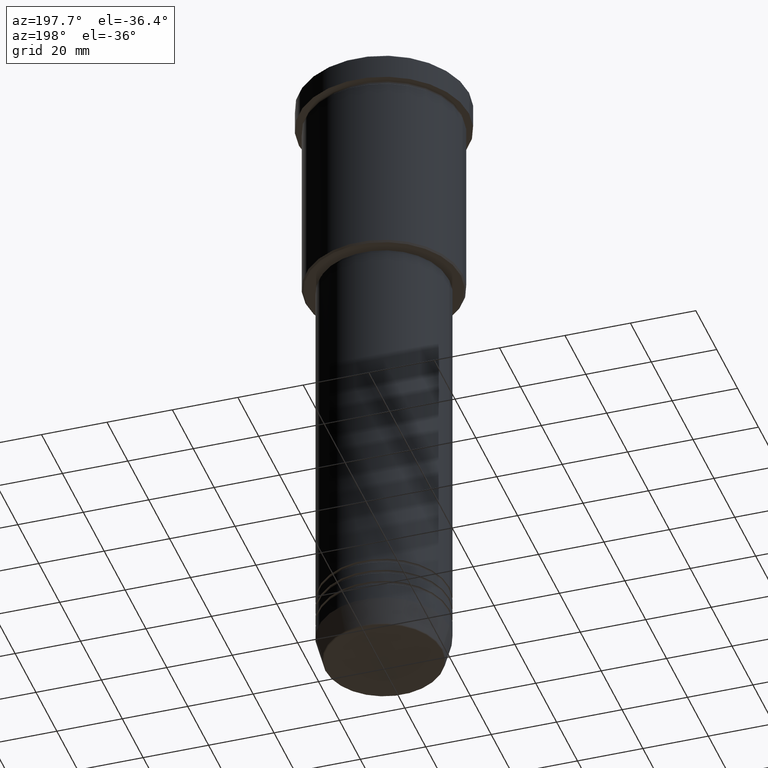
[diagram: clean part render]
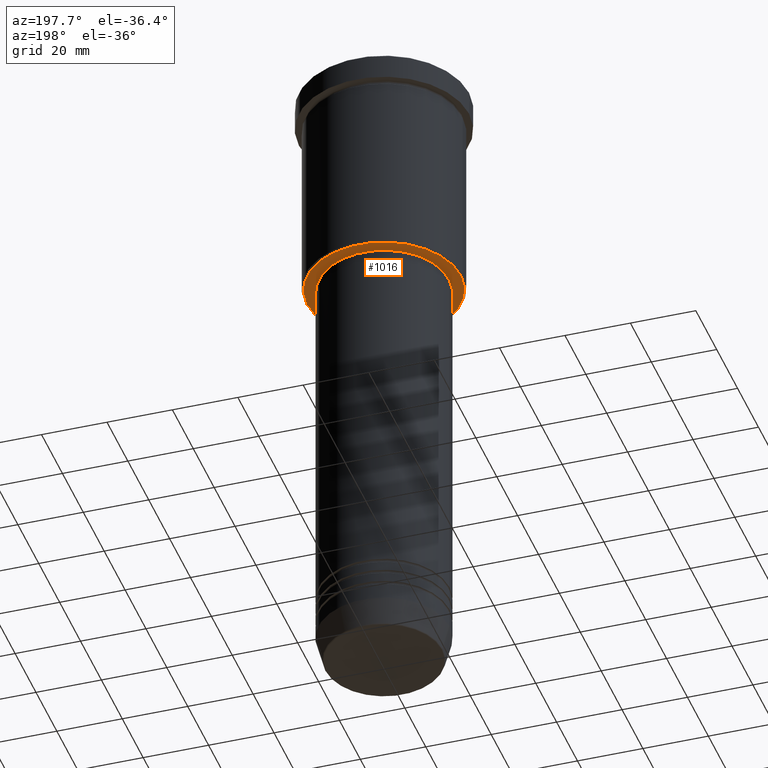
[diagram: same view with one face highlighted and labeled with its STEP entity id]
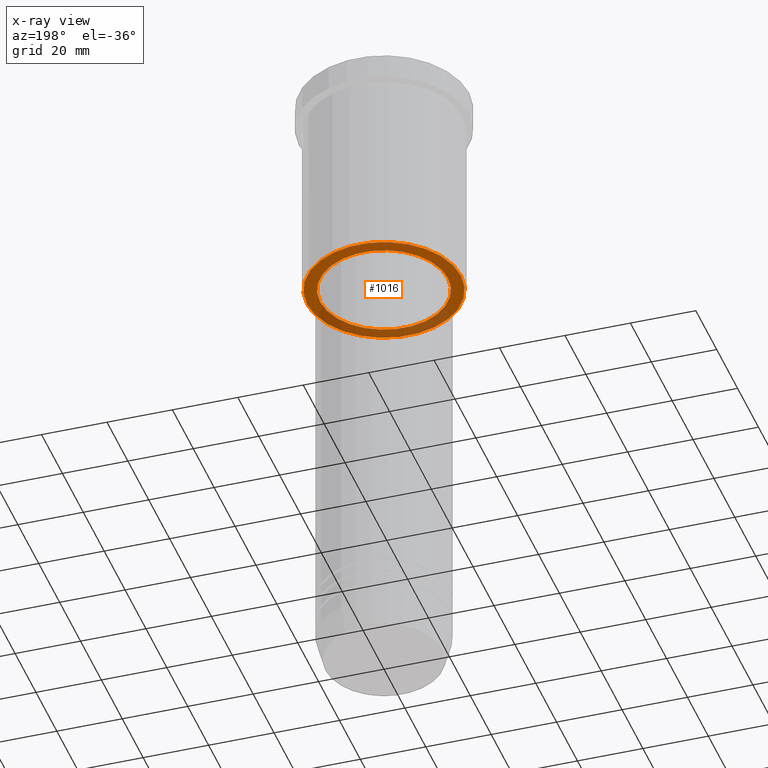
[diagram: x-ray of the same camera — body ghosted, the highlighted face saturated]
A machine part, auxiliary view. The second image highlights one B-rep face of the part: STEP entity #1016.
The next image is the same camera in x-ray: the body ghosted, the highlighted face saturated — about 34% of this face is hidden behind the body in this view.
In plain terms, the highlighted planar face has unit normal (0, 0, -1).
Its self-contained STEP definition (entity closure, byte-faithful):
#66 = CARTESIAN_POINT ( 'NONE',  ( 23.50000000000001776, 0.000000000000000000, -66.00000000000000000 ) ) ;
#84 = FACE_BOUND ( 'NONE', #197, .T. ) ;
#111 = CARTESIAN_POINT ( 'NONE',  ( 0.000000000000000000, 0.000000000000000000, -66.00000000000000000 ) ) ;
#133 = DIRECTION ( 'NONE',  ( -0.000000000000000000, -0.000000000000000000, 1.000000000000000000 ) ) ;
#135 = CIRCLE ( 'NONE', #360, 23.50000000000001776 ) ;
#197 = EDGE_LOOP ( 'NONE', ( #274, #246 ) ) ;
#225 = CARTESIAN_POINT ( 'NONE',  ( 19.50000000000000355, 0.000000000000000000, -66.00000000000000000 ) ) ;
#229 = CARTESIAN_POINT ( 'NONE',  ( 0.000000000000000000, 24.00000000000000000, -66.00000000000000000 ) ) ;
#242 = FACE_OUTER_BOUND ( 'NONE', #331, .T. ) ;
#246 = ORIENTED_EDGE ( 'NONE', *, *, #805, .T. ) ;
#274 = ORIENTED_EDGE ( 'NONE', *, *, #1142, .T. ) ;
#280 = CARTESIAN_POINT ( 'NONE',  ( 0.000000000000000000, 0.000000000000000000, -66.00000000000000000 ) ) ;
#327 = AXIS2_PLACEMENT_3D ( 'NONE', #229, #595, #606 ) ;
#331 = EDGE_LOOP ( 'NONE', ( #431, #665 ) ) ;
#357 = CARTESIAN_POINT ( 'NONE',  ( -23.50000000000001776, 2.908536147974965291E-15, -66.00000000000000000 ) ) ;
#360 = AXIS2_PLACEMENT_3D ( 'NONE', #1141, #676, #407 ) ;
#390 = EDGE_CURVE ( 'NONE', #761, #626, #135, .T. ) ;
#404 = DIRECTION ( 'NONE',  ( 1.000000000000000000, 0.000000000000000000, 0.000000000000000000 ) ) ;
#407 = DIRECTION ( 'NONE',  ( -1.000000000000000000, 0.000000000000000000, 0.000000000000000000 ) ) ;
#431 = ORIENTED_EDGE ( 'NONE', *, *, #1085, .T. ) ;
#470 = DIRECTION ( 'NONE',  ( 0.000000000000000000, 0.000000000000000000, -1.000000000000000000 ) ) ;
#565 = DIRECTION ( 'NONE',  ( 1.000000000000000000, 0.000000000000000000, 0.000000000000000000 ) ) ;
#579 = AXIS2_PLACEMENT_3D ( 'NONE', #280, #470, #1010 ) ;
#581 = AXIS2_PLACEMENT_3D ( 'NONE', #111, #938, #565 ) ;
#595 = DIRECTION ( 'NONE',  ( 0.000000000000000000, 0.000000000000000000, -1.000000000000000000 ) ) ;
#606 = DIRECTION ( 'NONE',  ( -1.000000000000000000, 0.000000000000000000, -0.000000000000000000 ) ) ;
#614 = AXIS2_PLACEMENT_3D ( 'NONE', #946, #133, #404 ) ;
#626 = VERTEX_POINT ( 'NONE', #66 ) ;
#665 = ORIENTED_EDGE ( 'NONE', *, *, #390, .T. ) ;
#676 = DIRECTION ( 'NONE',  ( 0.000000000000000000, 0.000000000000000000, -1.000000000000000000 ) ) ;
#761 = VERTEX_POINT ( 'NONE', #357 ) ;
#795 = PLANE ( 'NONE',  #327 ) ;
#796 = CIRCLE ( 'NONE', #614, 19.50000000000000355 ) ;
#805 = EDGE_CURVE ( 'NONE', #1084, #906, #796, .T. ) ;
#906 = VERTEX_POINT ( 'NONE', #225 ) ;
#931 = CIRCLE ( 'NONE', #581, 19.50000000000000355 ) ;
#938 = DIRECTION ( 'NONE',  ( -0.000000000000000000, -0.000000000000000000, 1.000000000000000000 ) ) ;
#946 = CARTESIAN_POINT ( 'NONE',  ( 0.000000000000000000, 0.000000000000000000, -66.00000000000000000 ) ) ;
#1010 = DIRECTION ( 'NONE',  ( -1.000000000000000000, 0.000000000000000000, 0.000000000000000000 ) ) ;
#1016 = ADVANCED_FACE ( 'NONE', ( #242, #84 ), #795, .T. ) ;
#1084 = VERTEX_POINT ( 'NONE', #1122 ) ;
#1085 = EDGE_CURVE ( 'NONE', #626, #761, #1101, .T. ) ;
#1101 = CIRCLE ( 'NONE', #579, 23.50000000000001776 ) ;
#1122 = CARTESIAN_POINT ( 'NONE',  ( -19.50000000000000355, 2.388061258337339333E-15, -66.00000000000000000 ) ) ;
#1141 = CARTESIAN_POINT ( 'NONE',  ( 0.000000000000000000, 0.000000000000000000, -66.00000000000000000 ) ) ;
#1142 = EDGE_CURVE ( 'NONE', #906, #1084, #931, .T. ) ;